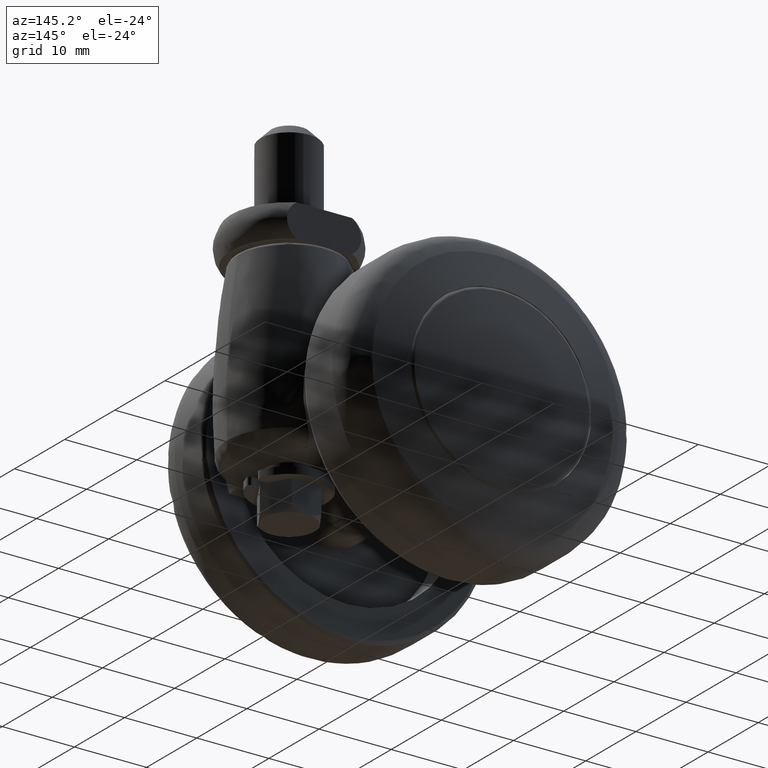
[diagram: clean part render]
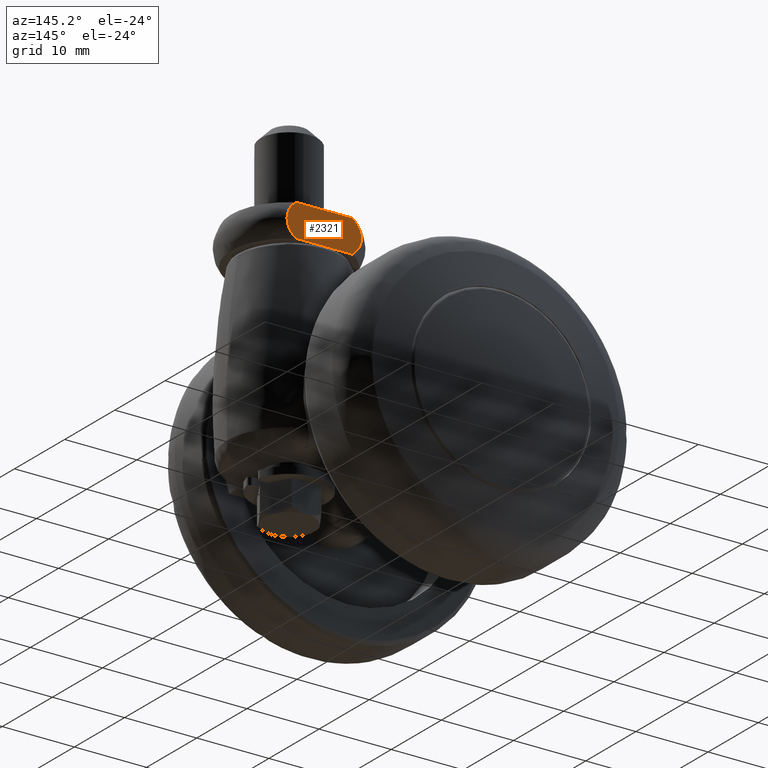
[diagram: same view with one face highlighted and labeled with its STEP entity id]
A machine part, auxiliary view. The second image highlights one B-rep face of the part: STEP entity #2321.
In plain terms, the highlighted face is a freeform B-spline surface patch.
Its self-contained STEP definition (entity closure, byte-faithful):
#2210=CARTESIAN_POINT('',(9.330933921803753,7.0,18.775225008721879));
#2211=CARTESIAN_POINT('',(9.330933921803753,7.0,23.724775111977529));
#2212=CARTESIAN_POINT('',(20.669018103591579,7.0,18.775225008721879));
#2213=CARTESIAN_POINT('',(20.669018103591579,7.0,23.724775111977529));
#2214=B_SPLINE_SURFACE_WITH_KNOTS('',1,1,((#2210,#2212),(#2211,#2213)),.UNSPECIFIED.,.F.,.F.,.U.,(2,2),(2,2),(0.0,4.949550103255657),(0.0,11.338084181787830),.UNSPECIFIED.);
#2215=CARTESIAN_POINT('',(11.127016367024581,7.0,19.0));
#2216=VERTEX_POINT('',#2215);
#2217=CARTESIAN_POINT('',(11.127016367024860,7.0,23.500000000000000));
#2218=VERTEX_POINT('',#2217);
#2219=CARTESIAN_POINT('',(11.127016367024581,7.0,19.0));
#2220=CARTESIAN_POINT('',(11.086830874370509,7.0,19.028595749171199));
#2221=CARTESIAN_POINT('',(11.047105431961739,7.0,19.058001576741351));
#2222=CARTESIAN_POINT('',(10.968628891051230,6.999999999999998,19.118528903072612));
#2223=CARTESIAN_POINT('',(10.929829134770760,6.999999999999999,19.149696051471501));
#2224=CARTESIAN_POINT('',(10.815922519923980,6.999999999999999,19.245120930904712));
#2225=CARTESIAN_POINT('',(10.743015444001831,6.999999999999999,19.311508238549820));
#2226=CARTESIAN_POINT('',(10.533937868610881,6.999999999999999,19.519486659920972));
#2227=CARTESIAN_POINT('',(10.407300444309140,6.999999999999999,19.669793179286501));
#2228=CARTESIAN_POINT('',(10.268009514291441,6.999999999999998,19.875052011838392));
#2229=CARTESIAN_POINT('',(10.241062858282710,7.0,19.917071788228640));
#2230=CARTESIAN_POINT('',(10.189771747298010,6.999999999999998,20.001988149218910));
#2231=CARTESIAN_POINT('',(10.165356790577460,7.000000000000001,20.044979188530171));
#2232=CARTESIAN_POINT('',(10.095850798243790,7.000000000000001,20.175571269572568));
#2233=CARTESIAN_POINT('',(10.054489564899599,7.000000000000003,20.264787344624850));
#2234=CARTESIAN_POINT('',(9.982166778696620,6.999999999999998,20.447722637068320));
#2235=CARTESIAN_POINT('',(9.951201752843986,7.000000000000001,20.541440350626250));
#2236=CARTESIAN_POINT('',(9.913134184172584,7.000000000000001,20.685645513037979));
#2237=CARTESIAN_POINT('',(9.901860170660649,7.000000000000001,20.734319399386010));
#2238=CARTESIAN_POINT('',(9.882476769430433,7.000000000000001,20.831493463832800));
#2239=CARTESIAN_POINT('',(9.874317861368375,7.000000000000001,20.880167396411359));
#2240=CARTESIAN_POINT('',(9.841114535280552,7.0,21.123967436664021));
#2241=CARTESIAN_POINT('',(9.838611200875047,7.000000000000001,21.320371491682511));
#2242=CARTESIAN_POINT('',(9.866690073744858,7.000000000000002,21.567645873485720));
#2243=CARTESIAN_POINT('',(9.873874002108938,6.999999999999999,21.617027598602110));
#2244=CARTESIAN_POINT('',(9.891153717063862,6.999999999999999,21.714598359169148));
#2245=CARTESIAN_POINT('',(9.901265883055173,7.0,21.762943589487620));
#2246=CARTESIAN_POINT('',(9.935893826730473,7.0,21.906696343030230));
#2247=CARTESIAN_POINT('',(9.964690961722546,7.0,22.000823944789609));
#2248=CARTESIAN_POINT('',(10.016157007183381,7.000000000000001,22.139542909664250));
#2249=CARTESIAN_POINT('',(10.034693386850609,7.0,22.185369702223010));
#2250=CARTESIAN_POINT('',(10.074507943399430,7.0,22.276203620852979));
#2251=CARTESIAN_POINT('',(10.095854489772080,7.000000000000002,22.321338252958551));
#2252=CARTESIAN_POINT('',(10.163360815892840,7.0,22.454291203668980));
#2253=CARTESIAN_POINT('',(10.212980674273011,7.000000000000001,22.539774292168651));
#2254=CARTESIAN_POINT('',(10.320693351449240,7.0,22.704953934324319));
#2255=CARTESIAN_POINT('',(10.378789388290940,7.0,22.784648290243940));
#2256=CARTESIAN_POINT('',(10.471917332214231,6.999999999999999,22.900103179251140));
#2257=CARTESIAN_POINT('',(10.503958998786160,7.0,22.937905871165281));
#2258=CARTESIAN_POINT('',(10.569995557180970,6.999999999999999,23.012177316745539));
#2259=CARTESIAN_POINT('',(10.603962434491260,7.000000000000001,23.048604796882419));
#2260=CARTESIAN_POINT('',(10.776865228167670,7.000000000000001,23.225822275982200));
#2261=CARTESIAN_POINT('',(10.926169393370920,7.000000000000002,23.353414963164131));
#2262=CARTESIAN_POINT('',(11.098612289214680,7.000000000000003,23.479644962493779));
#2263=CARTESIAN_POINT('',(11.112778564553990,7.000000000000003,23.489868675421210));
#2264=CARTESIAN_POINT('',(11.127016367024860,7.0,23.500000000000000));
#2265=B_SPLINE_CURVE_WITH_KNOTS('',3,(#2219,#2220,#2221,#2222,#2223,#2224,#2225,#2226,#2227,#2228,#2229,#2230,#2231,#2232,#2233,#2234,#2235,#2236,#2237,#2238,#2239,#2240,#2241,#2242,#2243,#2244,#2245,#2246,#2247,#2248,#2249,#2250,#2251,#2252,#2253,#2254,#2255,#2256,#2257,#2258,#2259,#2260,#2261,#2262,#2263,#2264),.UNSPECIFIED.,.F.,.U.,(4,2,2,2,2,2,2,2,2,2,2,2,2,2,2,2,2,2,2,2,2,2,4),(0.0,0.007812499999999,0.015624999999999,0.031249999999997,0.062499999999994,0.070312499999993,0.078124999999992,0.093749999999991,0.109374999999989,0.117187499999989,0.124999999999988,0.156249999999987,0.164062499999987,0.171874999999987,0.187499999999986,0.195312499999986,0.203124999999986,0.218749999999985,0.234374999999985,0.242187499999985,0.249999999999984,0.281249999999984,0.284031446610526),.UNSPECIFIED.);
#2266=EDGE_CURVE('',#2216,#2218,#2265,.T.);
#2267=ORIENTED_EDGE('',*,*,#2266,.T.);
#2268=CARTESIAN_POINT('',(18.872983639207352,7.000000011264020,23.499999981078052));
#2269=VERTEX_POINT('',#2268);
#2270=CARTESIAN_POINT('',(11.127016367024860,7.0,23.500000000000000));
#2271=CARTESIAN_POINT('',(18.872983639207352,7.000000011264020,23.499999981078052));
#2272=QUASI_UNIFORM_CURVE('',1,(#2270,#2271),.UNSPECIFIED.,.F.,.U.);
#2273=EDGE_CURVE('',#2218,#2269,#2272,.T.);
#2274=ORIENTED_EDGE('',*,*,#2273,.T.);
#2275=CARTESIAN_POINT('',(18.872983632975401,7.0,19.0));
#2276=VERTEX_POINT('',#2275);
#2277=CARTESIAN_POINT('',(18.872983639207352,7.000000011264020,23.499999981078052));
#2278=CARTESIAN_POINT('',(18.888166380501779,7.000000011236972,23.489194395823350));
#2279=CARTESIAN_POINT('',(18.903279318925200,7.000000011209644,23.478276515852130));
#2280=CARTESIAN_POINT('',(18.997546104105940,7.000000011036589,23.409140538335659));
#2281=CARTESIAN_POINT('',(19.074795729782998,7.000000010883193,23.347859042920138));
#2282=CARTESIAN_POINT('',(19.224871775843209,7.000000010558591,23.218180261901779));
#2283=CARTESIAN_POINT('',(19.297084740956439,7.000000010388622,23.150276722120669));
#2284=CARTESIAN_POINT('',(19.502899585531850,7.000000009858630,22.938543674109081));
#2285=CARTESIAN_POINT('',(19.626556336270259,7.000000009477103,22.786122851227411));
#2286=CARTESIAN_POINT('',(19.788261163731271,7.000000008855337,22.537725287248321));
#2287=CARTESIAN_POINT('',(19.838349383889241,7.000000008638612,22.451143684580359));
#2288=CARTESIAN_POINT('',(19.927452073157820,7.000000008198212,22.275202464065600));
#2289=CARTESIAN_POINT('',(19.966786978280240,7.000000007973537,22.185444789203061));
#2290=CARTESIAN_POINT('',(20.034793273406208,7.000000007515046,22.002276298213321));
#2291=CARTESIAN_POINT('',(20.063466918077200,7.000000007281229,21.908866254497319));
#2292=CARTESIAN_POINT('',(20.098082172792740,7.000000006923306,21.765875130128091));
#2293=CARTESIAN_POINT('',(20.108218829635010,7.000000006802797,21.717731202082909));
#2294=CARTESIAN_POINT('',(20.125586277844079,7.000000006559283,21.620447845263190));
#2295=CARTESIAN_POINT('',(20.132829231310559,7.000000006436002,21.571196451582129));
#2296=CARTESIAN_POINT('',(20.149915716100178,7.000000006064251,21.422681712252501));
#2297=CARTESIAN_POINT('',(20.155087796712529,7.000000005815207,21.323187256761329));
#2298=CARTESIAN_POINT('',(20.152855885127479,7.000000005315951,21.123733215853900));
#2299=CARTESIAN_POINT('',(20.145480683817759,7.000000005069319,21.025202768284920));
#2300=CARTESIAN_POINT('',(20.105547136951980,7.000000004337939,20.733015749883879));
#2301=CARTESIAN_POINT('',(20.055259698817760,7.000000003861149,20.542536498061430));
#2302=CARTESIAN_POINT('',(19.908586751800438,7.000000002931766,20.171246660411231));
#2303=CARTESIAN_POINT('',(19.815151096402801,7.000000002497271,19.997664128259860));
#2304=CARTESIAN_POINT('',(19.649081235325031,7.000000001884456,19.752843867192698));
#2305=CARTESIAN_POINT('',(19.589365231600230,7.000000001686733,19.673853367642991));
#2306=CARTESIAN_POINT('',(19.461551936776530,7.000000001303878,19.520902340892111));
#2307=CARTESIAN_POINT('',(19.394420477246811,7.000000001121634,19.448095303462448));
#2308=CARTESIAN_POINT('',(19.184654313601850,7.000000000600291,19.239816777412720));
#2309=CARTESIAN_POINT('',(19.033574141307099,7.000000000286046,19.114275193801351));
#2310=CARTESIAN_POINT('',(18.872983632975401,7.0,19.0));
#2311=B_SPLINE_CURVE_WITH_KNOTS('',3,(#2277,#2278,#2279,#2280,#2281,#2282,#2283,#2284,#2285,#2286,#2287,#2288,#2289,#2290,#2291,#2292,#2293,#2294,#2295,#2296,#2297,#2298,#2299,#2300,#2301,#2302,#2303,#2304,#2305,#2306,#2307,#2308,#2309,#2310),.UNSPECIFIED.,.F.,.U.,(4,2,2,2,2,2,2,2,2,2,2,2,2,2,2,2,4),(0.715783353663451,0.718749999999985,0.734374999999986,0.749999999999987,0.781249999999988,0.796874999999989,0.812499999999990,0.828124999999991,0.835937499999991,0.843749999999991,0.859374999999992,0.874999999999993,0.906249999999995,0.937499999999996,0.953124999999997,0.968749999999998,1.0),.UNSPECIFIED.);
#2312=EDGE_CURVE('',#2269,#2276,#2311,.T.);
#2313=ORIENTED_EDGE('',*,*,#2312,.T.);
#2314=CARTESIAN_POINT('',(11.127016367024581,7.0,19.0));
#2315=CARTESIAN_POINT('',(18.872983632975401,7.0,19.0));
#2316=QUASI_UNIFORM_CURVE('',1,(#2314,#2315),.UNSPECIFIED.,.F.,.U.);
#2317=EDGE_CURVE('',#2216,#2276,#2316,.T.);
#2318=ORIENTED_EDGE('',*,*,#2317,.F.);
#2319=EDGE_LOOP('',(#2267,#2274,#2313,#2318));
#2320=FACE_OUTER_BOUND('',#2319,.T.);
#2321=ADVANCED_FACE('',(#2320),#2214,.T.);